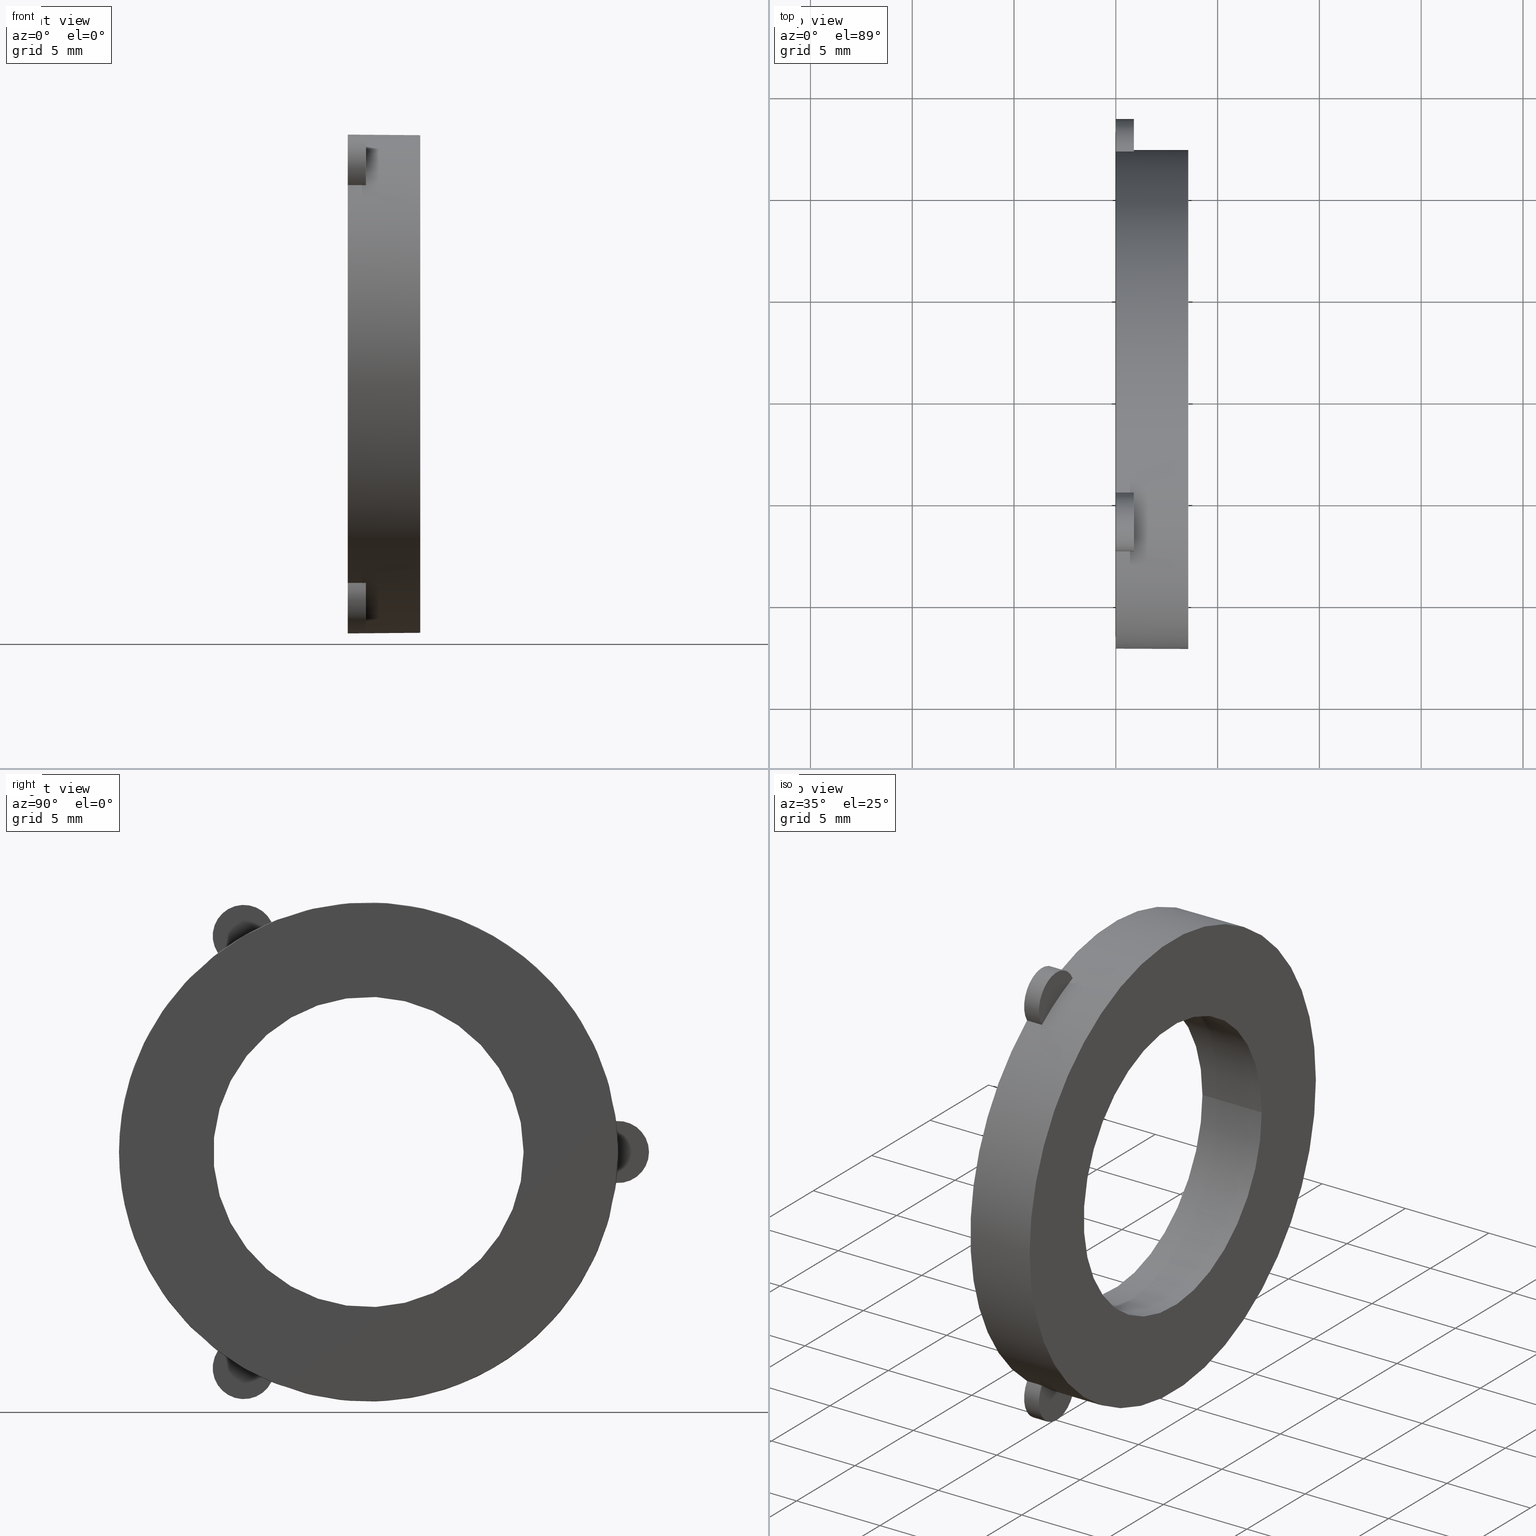
[diagram: canonical four-view strip — front | top / right | iso, engineering-drawing reading convention]
A machine part, canonical four-view strip (front | top / right | iso — engineering-drawing reading convention). The complete STEP part file that produces these views, byte-faithful:
ISO-10303-21;
HEADER;
/* Generated by software containing ST-Developer
 * from STEP Tools, Inc. (www.steptools.com) 
 */

FILE_DESCRIPTION(
/* description */ ('Garden Hose Fitting Gasket'),
/* implementation_level */ '2;1');

FILE_NAME(
/* name */ 'E:\\1-3D\\STEP\\GHFT075G.stp',
/* time_stamp */ '2016-12-05T15:15:04-05:00',
/* author */ ('ALR'),
/* organization */ (''),
/* preprocessor_version */ 'ST-DEVELOPER v16.5',
/* originating_system */ 'Autodesk Inventor 2017',
/* authorisation */ '');

FILE_SCHEMA (('AUTOMOTIVE_DESIGN { 1 0 10303 214 3 1 1 }'));
ENDSEC;

DATA;
#10=MECHANICAL_DESIGN_GEOMETRIC_PRESENTATION_REPRESENTATION('',(#13),#309);
#11=SHAPE_REPRESENTATION_RELATIONSHIP('SRR','None',#321,#12);
#12=ADVANCED_BREP_SHAPE_REPRESENTATION('',(#14),#308);
#13=STYLED_ITEM('',(#330),#14);
#14=MANIFOLD_SOLID_BREP('Solid1',#168);
#15=FACE_BOUND('',#53,.T.);
#16=FACE_BOUND('',#55,.T.);
#17=FACE_BOUND('',#57,.T.);
#18=FACE_BOUND('',#59,.T.);
#19=LINE('',#267,#25);
#20=LINE('',#269,#26);
#21=LINE('',#274,#27);
#22=LINE('',#278,#28);
#23=LINE('',#285,#29);
#24=LINE('',#289,#30);
#25=VECTOR('',#211,0.393700787401575);
#26=VECTOR('',#212,0.393700787401575);
#27=VECTOR('',#217,0.393700787401575);
#28=VECTOR('',#220,0.393700787401575);
#29=VECTOR('',#229,0.393700787401575);
#30=VECTOR('',#232,0.393700787401575);
#31=CYLINDRICAL_SURFACE('',#179,0.06);
#32=CYLINDRICAL_SURFACE('',#181,0.06);
#33=CYLINDRICAL_SURFACE('',#186,0.06);
#34=CYLINDRICAL_SURFACE('',#196,0.4825);
#35=CYLINDRICAL_SURFACE('',#200,0.3);
#36=FACE_OUTER_BOUND('',#46,.T.);
#37=FACE_OUTER_BOUND('',#47,.T.);
#38=FACE_OUTER_BOUND('',#48,.T.);
#39=FACE_OUTER_BOUND('',#49,.T.);
#40=FACE_OUTER_BOUND('',#50,.T.);
#41=FACE_OUTER_BOUND('',#51,.T.);
#42=FACE_OUTER_BOUND('',#52,.T.);
#43=FACE_OUTER_BOUND('',#54,.T.);
#44=FACE_OUTER_BOUND('',#56,.T.);
#45=FACE_OUTER_BOUND('',#58,.T.);
#46=EDGE_LOOP('',(#111,#112));
#47=EDGE_LOOP('',(#113,#114,#115,#116));
#48=EDGE_LOOP('',(#117,#118,#119,#120));
#49=EDGE_LOOP('',(#121,#122));
#50=EDGE_LOOP('',(#123,#124,#125,#126));
#51=EDGE_LOOP('',(#127,#128));
#52=EDGE_LOOP('',(#129,#130,#131,#132,#133,#134));
#53=EDGE_LOOP('',(#135));
#54=EDGE_LOOP('',(#136,#137,#138,#139,#140,#141,#142,#143,#144,#145,#146,
#147));
#55=EDGE_LOOP('',(#148));
#56=EDGE_LOOP('',(#149));
#57=EDGE_LOOP('',(#150));
#58=EDGE_LOOP('',(#151));
#59=EDGE_LOOP('',(#152));
#60=CIRCLE('',#177,0.4825);
#61=CIRCLE('',#178,0.06);
#62=CIRCLE('',#180,0.06);
#63=CIRCLE('',#182,0.06);
#64=CIRCLE('',#183,0.06);
#65=CIRCLE('',#185,0.4825);
#66=CIRCLE('',#187,0.06);
#67=CIRCLE('',#188,0.06);
#68=CIRCLE('',#190,0.4825);
#69=CIRCLE('',#192,0.4825);
#70=CIRCLE('',#193,0.4825);
#71=CIRCLE('',#194,0.4825);
#72=CIRCLE('',#195,0.3);
#73=CIRCLE('',#197,0.4825);
#74=CIRCLE('',#199,0.3);
#75=VERTEX_POINT('',#261);
#76=VERTEX_POINT('',#262);
#77=VERTEX_POINT('',#266);
#78=VERTEX_POINT('',#268);
#79=VERTEX_POINT('',#272);
#80=VERTEX_POINT('',#273);
#81=VERTEX_POINT('',#275);
#82=VERTEX_POINT('',#277);
#83=VERTEX_POINT('',#283);
#84=VERTEX_POINT('',#284);
#85=VERTEX_POINT('',#286);
#86=VERTEX_POINT('',#288);
#87=VERTEX_POINT('',#297);
#88=VERTEX_POINT('',#300);
#89=VERTEX_POINT('',#303);
#90=EDGE_CURVE('',#75,#76,#60,.T.);
#91=EDGE_CURVE('',#75,#76,#61,.T.);
#92=EDGE_CURVE('',#76,#77,#19,.T.);
#93=EDGE_CURVE('',#78,#75,#20,.T.);
#94=EDGE_CURVE('',#78,#77,#62,.T.);
#95=EDGE_CURVE('',#79,#80,#21,.T.);
#96=EDGE_CURVE('',#79,#81,#63,.T.);
#97=EDGE_CURVE('',#82,#81,#22,.T.);
#98=EDGE_CURVE('',#80,#82,#64,.T.);
#99=EDGE_CURVE('',#80,#82,#65,.T.);
#100=EDGE_CURVE('',#83,#84,#23,.T.);
#101=EDGE_CURVE('',#83,#85,#66,.T.);
#102=EDGE_CURVE('',#86,#85,#24,.T.);
#103=EDGE_CURVE('',#84,#86,#67,.T.);
#104=EDGE_CURVE('',#84,#86,#68,.T.);
#105=EDGE_CURVE('',#85,#78,#69,.T.);
#106=EDGE_CURVE('',#81,#83,#70,.T.);
#107=EDGE_CURVE('',#77,#79,#71,.T.);
#108=EDGE_CURVE('',#87,#87,#72,.T.);
#109=EDGE_CURVE('',#88,#88,#73,.T.);
#110=EDGE_CURVE('',#89,#89,#74,.T.);
#111=ORIENTED_EDGE('',*,*,#90,.F.);
#112=ORIENTED_EDGE('',*,*,#91,.T.);
#113=ORIENTED_EDGE('',*,*,#92,.F.);
#114=ORIENTED_EDGE('',*,*,#91,.F.);
#115=ORIENTED_EDGE('',*,*,#93,.F.);
#116=ORIENTED_EDGE('',*,*,#94,.T.);
#117=ORIENTED_EDGE('',*,*,#95,.F.);
#118=ORIENTED_EDGE('',*,*,#96,.T.);
#119=ORIENTED_EDGE('',*,*,#97,.F.);
#120=ORIENTED_EDGE('',*,*,#98,.F.);
#121=ORIENTED_EDGE('',*,*,#99,.F.);
#122=ORIENTED_EDGE('',*,*,#98,.T.);
#123=ORIENTED_EDGE('',*,*,#100,.F.);
#124=ORIENTED_EDGE('',*,*,#101,.T.);
#125=ORIENTED_EDGE('',*,*,#102,.F.);
#126=ORIENTED_EDGE('',*,*,#103,.F.);
#127=ORIENTED_EDGE('',*,*,#104,.F.);
#128=ORIENTED_EDGE('',*,*,#103,.T.);
#129=ORIENTED_EDGE('',*,*,#105,.F.);
#130=ORIENTED_EDGE('',*,*,#101,.F.);
#131=ORIENTED_EDGE('',*,*,#106,.F.);
#132=ORIENTED_EDGE('',*,*,#96,.F.);
#133=ORIENTED_EDGE('',*,*,#107,.F.);
#134=ORIENTED_EDGE('',*,*,#94,.F.);
#135=ORIENTED_EDGE('',*,*,#108,.T.);
#136=ORIENTED_EDGE('',*,*,#92,.T.);
#137=ORIENTED_EDGE('',*,*,#107,.T.);
#138=ORIENTED_EDGE('',*,*,#95,.T.);
#139=ORIENTED_EDGE('',*,*,#99,.T.);
#140=ORIENTED_EDGE('',*,*,#97,.T.);
#141=ORIENTED_EDGE('',*,*,#106,.T.);
#142=ORIENTED_EDGE('',*,*,#100,.T.);
#143=ORIENTED_EDGE('',*,*,#104,.T.);
#144=ORIENTED_EDGE('',*,*,#102,.T.);
#145=ORIENTED_EDGE('',*,*,#105,.T.);
#146=ORIENTED_EDGE('',*,*,#93,.T.);
#147=ORIENTED_EDGE('',*,*,#90,.T.);
#148=ORIENTED_EDGE('',*,*,#109,.F.);
#149=ORIENTED_EDGE('',*,*,#109,.T.);
#150=ORIENTED_EDGE('',*,*,#110,.F.);
#151=ORIENTED_EDGE('',*,*,#108,.F.);
#152=ORIENTED_EDGE('',*,*,#110,.T.);
#153=PLANE('',#176);
#154=PLANE('',#184);
#155=PLANE('',#189);
#156=PLANE('',#191);
#157=PLANE('',#198);
#158=ADVANCED_FACE('',(#36),#153,.T.);
#159=ADVANCED_FACE('',(#37),#31,.T.);
#160=ADVANCED_FACE('',(#38),#32,.T.);
#161=ADVANCED_FACE('',(#39),#154,.T.);
#162=ADVANCED_FACE('',(#40),#33,.T.);
#163=ADVANCED_FACE('',(#41),#155,.T.);
#164=ADVANCED_FACE('',(#42,#15),#156,.T.);
#165=ADVANCED_FACE('',(#43,#16),#34,.T.);
#166=ADVANCED_FACE('',(#44,#17),#157,.T.);
#167=ADVANCED_FACE('',(#45,#18),#35,.F.);
#168=CLOSED_SHELL('',(#158,#159,#160,#161,#162,#163,#164,#165,#166,#167));
#169=DATE_TIME_ROLE('creation_date');
#170=APPLIED_DATE_AND_TIME_ASSIGNMENT(#171,#169,(#323));
#171=DATE_AND_TIME(#172,#173);
#172=CALENDAR_DATE(2006,25,8);
#173=LOCAL_TIME(13,5,39.,#174);
#174=COORDINATED_UNIVERSAL_TIME_OFFSET(0,0,.BEHIND.);
#175=AXIS2_PLACEMENT_3D('placement',#259,#201,#202);
#176=AXIS2_PLACEMENT_3D('',#260,#203,#204);
#177=AXIS2_PLACEMENT_3D('',#263,#205,#206);
#178=AXIS2_PLACEMENT_3D('',#264,#207,#208);
#179=AXIS2_PLACEMENT_3D('',#265,#209,#210);
#180=AXIS2_PLACEMENT_3D('',#270,#213,#214);
#181=AXIS2_PLACEMENT_3D('',#271,#215,#216);
#182=AXIS2_PLACEMENT_3D('',#276,#218,#219);
#183=AXIS2_PLACEMENT_3D('',#279,#221,#222);
#184=AXIS2_PLACEMENT_3D('',#280,#223,#224);
#185=AXIS2_PLACEMENT_3D('',#281,#225,#226);
#186=AXIS2_PLACEMENT_3D('',#282,#227,#228);
#187=AXIS2_PLACEMENT_3D('',#287,#230,#231);
#188=AXIS2_PLACEMENT_3D('',#290,#233,#234);
#189=AXIS2_PLACEMENT_3D('',#291,#235,#236);
#190=AXIS2_PLACEMENT_3D('',#292,#237,#238);
#191=AXIS2_PLACEMENT_3D('',#293,#239,#240);
#192=AXIS2_PLACEMENT_3D('',#294,#241,#242);
#193=AXIS2_PLACEMENT_3D('',#295,#243,#244);
#194=AXIS2_PLACEMENT_3D('',#296,#245,#246);
#195=AXIS2_PLACEMENT_3D('',#298,#247,#248);
#196=AXIS2_PLACEMENT_3D('',#299,#249,#250);
#197=AXIS2_PLACEMENT_3D('',#301,#251,#252);
#198=AXIS2_PLACEMENT_3D('',#302,#253,#254);
#199=AXIS2_PLACEMENT_3D('',#304,#255,#256);
#200=AXIS2_PLACEMENT_3D('',#305,#257,#258);
#201=DIRECTION('axis',(0.,0.,1.));
#202=DIRECTION('refdir',(1.,0.,0.));
#203=DIRECTION('center_axis',(1.,0.,0.));
#204=DIRECTION('ref_axis',(0.,0.,-1.));
#205=DIRECTION('center_axis',(1.,0.,0.));
#206=DIRECTION('ref_axis',(0.,1.,0.));
#207=DIRECTION('center_axis',(1.,0.,0.));
#208=DIRECTION('ref_axis',(0.,0.,-1.));
#209=DIRECTION('center_axis',(1.,0.,0.));
#210=DIRECTION('ref_axis',(0.,0.,-1.));
#211=DIRECTION('',(-1.,0.,0.));
#212=DIRECTION('',(1.,0.,0.));
#213=DIRECTION('center_axis',(1.,0.,0.));
#214=DIRECTION('ref_axis',(0.,0.,-1.));
#215=DIRECTION('center_axis',(1.,0.,0.));
#216=DIRECTION('ref_axis',(0.,0.,-1.));
#217=DIRECTION('',(1.,0.,0.));
#218=DIRECTION('center_axis',(1.,0.,0.));
#219=DIRECTION('ref_axis',(0.,0.,-1.));
#220=DIRECTION('',(-1.,0.,0.));
#221=DIRECTION('center_axis',(1.,0.,0.));
#222=DIRECTION('ref_axis',(0.,0.,-1.));
#223=DIRECTION('center_axis',(1.,0.,0.));
#224=DIRECTION('ref_axis',(0.,0.,-1.));
#225=DIRECTION('center_axis',(1.,0.,0.));
#226=DIRECTION('ref_axis',(0.,1.,0.));
#227=DIRECTION('center_axis',(1.,0.,0.));
#228=DIRECTION('ref_axis',(0.,0.,-1.));
#229=DIRECTION('',(1.,0.,0.));
#230=DIRECTION('center_axis',(1.,0.,0.));
#231=DIRECTION('ref_axis',(0.,0.,-1.));
#232=DIRECTION('',(-1.,0.,0.));
#233=DIRECTION('center_axis',(1.,0.,0.));
#234=DIRECTION('ref_axis',(0.,0.,-1.));
#235=DIRECTION('center_axis',(1.,0.,0.));
#236=DIRECTION('ref_axis',(0.,0.,-1.));
#237=DIRECTION('center_axis',(1.,0.,0.));
#238=DIRECTION('ref_axis',(0.,1.,0.));
#239=DIRECTION('center_axis',(-1.,0.,0.));
#240=DIRECTION('ref_axis',(0.,0.,1.));
#241=DIRECTION('center_axis',(1.,0.,0.));
#242=DIRECTION('ref_axis',(0.,0.,-1.));
#243=DIRECTION('center_axis',(1.,0.,0.));
#244=DIRECTION('ref_axis',(0.,0.,-1.));
#245=DIRECTION('center_axis',(1.,0.,0.));
#246=DIRECTION('ref_axis',(0.,0.,-1.));
#247=DIRECTION('center_axis',(1.,0.,0.));
#248=DIRECTION('ref_axis',(0.,0.,-1.));
#249=DIRECTION('center_axis',(1.,0.,0.));
#250=DIRECTION('ref_axis',(0.,1.,0.));
#251=DIRECTION('center_axis',(1.,0.,0.));
#252=DIRECTION('ref_axis',(0.,0.,-1.));
#253=DIRECTION('center_axis',(1.,0.,0.));
#254=DIRECTION('ref_axis',(0.,0.,-1.));
#255=DIRECTION('center_axis',(1.,0.,0.));
#256=DIRECTION('ref_axis',(0.,0.,-1.));
#257=DIRECTION('center_axis',(1.,0.,0.));
#258=DIRECTION('ref_axis',(0.,1.,0.));
#259=CARTESIAN_POINT('',(0.,0.,0.));
#260=CARTESIAN_POINT('Origin',(0.035,-0.24125,-0.417857257325992));
#261=CARTESIAN_POINT('',(0.035,-0.291245703600135,-0.384684533266496));
#262=CARTESIAN_POINT('',(0.035,-0.187523726451678,-0.444568444694038));
#263=CARTESIAN_POINT('Origin',(0.035,0.,0.));
#264=CARTESIAN_POINT('Origin',(0.035,-0.24125,-0.417857257325992));
#265=CARTESIAN_POINT('Origin',(0.,-0.24125,-0.417857257325992));
#266=CARTESIAN_POINT('',(0.,-0.187523726451678,-0.444568444694038));
#267=CARTESIAN_POINT('',(0.,-0.187523726451678,-0.444568444694038));
#268=CARTESIAN_POINT('',(0.,-0.291245703600135,-0.384684533266496));
#269=CARTESIAN_POINT('',(0.,-0.291245703600135,-0.384684533266496));
#270=CARTESIAN_POINT('Origin',(0.,-0.24125,-0.417857257325992));
#271=CARTESIAN_POINT('Origin',(0.,0.4825,0.));
#272=CARTESIAN_POINT('',(0.,0.478769430051813,-0.0598839114275419));
#273=CARTESIAN_POINT('',(0.035,0.478769430051813,-0.0598839114275419));
#274=CARTESIAN_POINT('',(0.,0.478769430051813,-0.0598839114275419));
#275=CARTESIAN_POINT('',(0.,0.478769430051813,0.0598839114275419));
#276=CARTESIAN_POINT('Origin',(0.,0.4825,0.));
#277=CARTESIAN_POINT('',(0.035,0.478769430051813,0.0598839114275419));
#278=CARTESIAN_POINT('',(0.,0.478769430051813,0.0598839114275419));
#279=CARTESIAN_POINT('Origin',(0.035,0.4825,0.));
#280=CARTESIAN_POINT('Origin',(0.035,0.4825,-3.5999086944821E-18));
#281=CARTESIAN_POINT('Origin',(0.035,0.,0.));
#282=CARTESIAN_POINT('Origin',(0.,-0.24125,0.417857257325992));
#283=CARTESIAN_POINT('',(0.,-0.187523726451678,0.444568444694038));
#284=CARTESIAN_POINT('',(0.035,-0.187523726451678,0.444568444694038));
#285=CARTESIAN_POINT('',(0.,-0.187523726451678,0.444568444694038));
#286=CARTESIAN_POINT('',(0.,-0.291245703600135,0.384684533266496));
#287=CARTESIAN_POINT('Origin',(0.,-0.24125,0.417857257325992));
#288=CARTESIAN_POINT('',(0.035,-0.291245703600135,0.384684533266496));
#289=CARTESIAN_POINT('',(0.,-0.291245703600135,0.384684533266496));
#290=CARTESIAN_POINT('Origin',(0.035,-0.24125,0.417857257325992));
#291=CARTESIAN_POINT('Origin',(0.035,-0.24125,0.417857257325992));
#292=CARTESIAN_POINT('Origin',(0.035,0.,0.));
#293=CARTESIAN_POINT('Origin',(0.,0.4825,0.));
#294=CARTESIAN_POINT('Origin',(0.,0.,0.));
#295=CARTESIAN_POINT('Origin',(0.,0.,0.));
#296=CARTESIAN_POINT('Origin',(0.,0.,0.));
#297=CARTESIAN_POINT('',(0.,0.3,0.));
#298=CARTESIAN_POINT('Origin',(0.,0.,0.));
#299=CARTESIAN_POINT('Origin',(0.07,0.,0.));
#300=CARTESIAN_POINT('',(0.14,0.4825,0.));
#301=CARTESIAN_POINT('Origin',(0.14,0.,0.));
#302=CARTESIAN_POINT('Origin',(0.14,0.3,0.));
#303=CARTESIAN_POINT('',(0.14,0.3,0.));
#304=CARTESIAN_POINT('Origin',(0.14,0.,0.));
#305=CARTESIAN_POINT('Origin',(0.07,0.,0.));
#306=UNCERTAINTY_MEASURE_WITH_UNIT(LENGTH_MEASURE(0.000393700787401575),
#310,'DISTANCE_ACCURACY_VALUE',
'Maximum model space distance between geometric entities at asserted c
onnectivities');
#307=UNCERTAINTY_MEASURE_WITH_UNIT(LENGTH_MEASURE(1.E-6),#311,
'DISTANCE_ACCURACY_VALUE',
'Maximum model space distance between geometric entities at asserted c
onnectivities');
#308=(
GEOMETRIC_REPRESENTATION_CONTEXT(3)
GLOBAL_UNCERTAINTY_ASSIGNED_CONTEXT((#306))
GLOBAL_UNIT_ASSIGNED_CONTEXT((#310,#316,#313))
REPRESENTATION_CONTEXT('','3D')
);
#309=(
GEOMETRIC_REPRESENTATION_CONTEXT(3)
GLOBAL_UNCERTAINTY_ASSIGNED_CONTEXT((#307))
GLOBAL_UNIT_ASSIGNED_CONTEXT((#311,#316,#313))
REPRESENTATION_CONTEXT('','3D')
);
#310=(
CONVERSION_BASED_UNIT('__CONSTANT UNIT inch',#312)
LENGTH_UNIT()
NAMED_UNIT(#315)
);
#311=(
LENGTH_UNIT()
NAMED_UNIT(*)
SI_UNIT(.MILLI.,.METRE.)
);
#312=LENGTH_MEASURE_WITH_UNIT(LENGTH_MEASURE(25.4),#311);
#313=(
NAMED_UNIT(*)
SI_UNIT($,.STERADIAN.)
SOLID_ANGLE_UNIT()
);
#314=DIMENSIONAL_EXPONENTS(0.,0.,0.,0.,0.,0.,0.);
#315=DIMENSIONAL_EXPONENTS(1.,0.,0.,0.,0.,0.,0.);
#316=(
CONVERSION_BASED_UNIT('degree',#318)
NAMED_UNIT(#314)
PLANE_ANGLE_UNIT()
);
#317=(
NAMED_UNIT(*)
PLANE_ANGLE_UNIT()
SI_UNIT($,.RADIAN.)
);
#318=PLANE_ANGLE_MEASURE_WITH_UNIT(PLANE_ANGLE_MEASURE(0.01745329252),#317);
#319=SHAPE_DEFINITION_REPRESENTATION(#320,#321);
#320=PRODUCT_DEFINITION_SHAPE('',$,#323);
#321=SHAPE_REPRESENTATION('',(#175),#308);
#322=PRODUCT_DEFINITION_CONTEXT('part definition',#327,'design');
#323=PRODUCT_DEFINITION('GHFT075G','GHFT075G',#324,#322);
#324=PRODUCT_DEFINITION_FORMATION('000',$,#329);
#325=PRODUCT_RELATED_PRODUCT_CATEGORY('GHFT075G','GHFT075G',(#329));
#326=APPLICATION_PROTOCOL_DEFINITION('international standard',
'automotive_design',2009,#327);
#327=APPLICATION_CONTEXT(
'Core Data for Automotive Mechanical Design Process');
#328=PRODUCT_CONTEXT('part definition',#327,'mechanical');
#329=PRODUCT('GHFT075G','GHFT075G','Garden Hose Fitting Gasket',(#328));
#330=PRESENTATION_STYLE_ASSIGNMENT((#331));
#331=SURFACE_STYLE_USAGE(.BOTH.,#332);
#332=SURFACE_SIDE_STYLE('',(#333));
#333=SURFACE_STYLE_FILL_AREA(#334);
#334=FILL_AREA_STYLE('',(#335));
#335=FILL_AREA_STYLE_COLOUR('',#336);
#336=COLOUR_RGB('',0.92156862745098,0.92156862745098,0.92156862745098);
ENDSEC;
END-ISO-10303-21;
